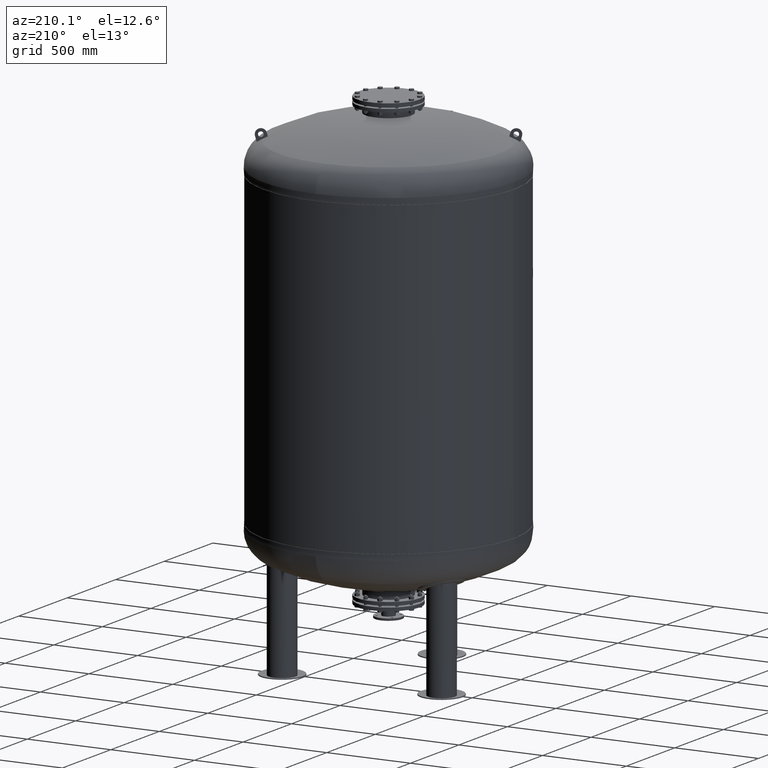
[diagram: clean part render]
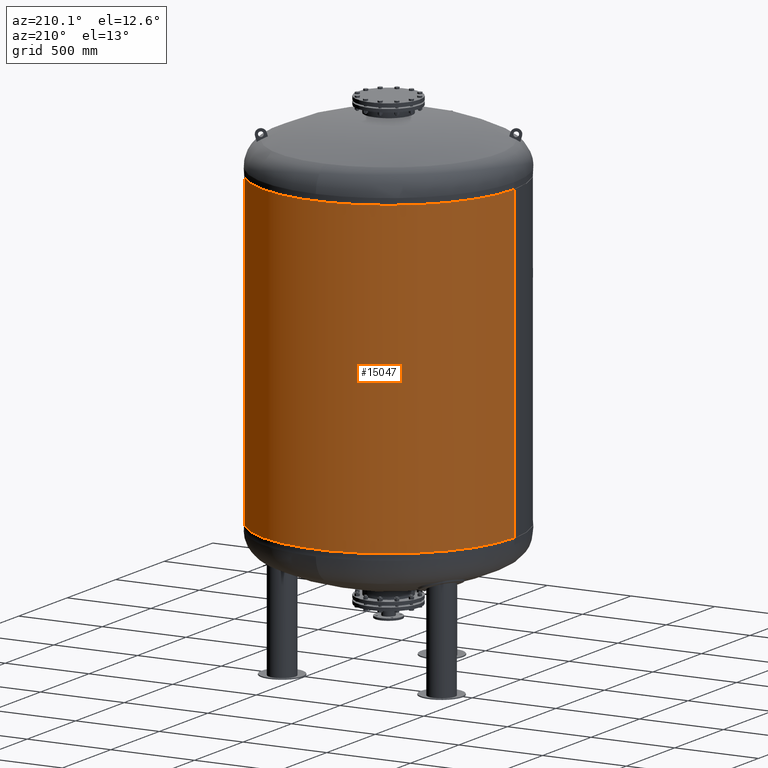
[diagram: same view with one face highlighted and labeled with its STEP entity id]
A machine part, auxiliary view. The second image highlights one B-rep face of the part: STEP entity #15047.
In plain terms, the highlighted cylindrical surface (partial cylindrical patch) has radius 750 mm, axis along (0, 0, 1).
Its self-contained STEP definition (entity closure, byte-faithful):
#14927=CARTESIAN_POINT('',(750.000000000000910,0.0,2667.0));
#14928=VERTEX_POINT('',#14927);
#14929=CARTESIAN_POINT('',(749.999999999999890,0.0,822.0));
#14930=VERTEX_POINT('',#14929);
#14931=CARTESIAN_POINT('',(750.000000000000910,0.0,2667.0));
#14932=DIRECTION('',(0.0,0.0,-1.0));
#14933=VECTOR('',#14932,1845.0);
#14934=LINE('',#14931,#14933);
#14935=EDGE_CURVE('',#14928,#14930,#14934,.T.);
#14937=CARTESIAN_POINT('',(-750.000000000000570,-9.184548E-014,2667.0));
#14938=VERTEX_POINT('',#14937);
#14946=CARTESIAN_POINT('',(-749.999999999999890,-9.184548E-014,822.000000000000110));
#14947=VERTEX_POINT('',#14946);
#14948=CARTESIAN_POINT('',(-750.000000000000570,-9.184548E-014,2667.0));
#14949=DIRECTION('',(0.0,0.0,-1.0));
#14950=VECTOR('',#14949,1845.0);
#14951=LINE('',#14948,#14950);
#14952=EDGE_CURVE('',#14938,#14947,#14951,.T.);
#15020=CARTESIAN_POINT('',(-1.663310E-014,0.0,822.000000000000110));
#15021=DIRECTION('',(0.0,0.0,1.0));
#15022=DIRECTION('',(1.0,0.0,0.0));
#15023=AXIS2_PLACEMENT_3D('',#15020,#15021,#15022);
#15024=CIRCLE('',#15023,749.999999999999890);
#15025=EDGE_CURVE('',#14930,#14947,#15024,.T.);
#15030=CARTESIAN_POINT('',(8.316550E-015,0.0,2212.250000000000000));
#15031=DIRECTION('',(1.828818E-017,0.0,1.0));
#15032=DIRECTION('',(1.0,0.0,0.0));
#15033=AXIS2_PLACEMENT_3D('',#15030,#15031,#15032);
#15034=CYLINDRICAL_SURFACE('',#15033,750.000000000000570);
#15035=ORIENTED_EDGE('',*,*,#14935,.T.);
#15036=ORIENTED_EDGE('',*,*,#15025,.T.);
#15037=ORIENTED_EDGE('',*,*,#14952,.F.);
#15038=CARTESIAN_POINT('',(1.663310E-014,0.0,2667.0));
#15039=DIRECTION('',(0.0,0.0,1.0));
#15040=DIRECTION('',(1.0,0.0,0.0));
#15041=AXIS2_PLACEMENT_3D('',#15038,#15039,#15040);
#15042=CIRCLE('',#15041,750.000000000000910);
#15043=EDGE_CURVE('',#14928,#14938,#15042,.T.);
#15044=ORIENTED_EDGE('',*,*,#15043,.F.);
#15045=EDGE_LOOP('',(#15035,#15036,#15037,#15044));
#15046=FACE_OUTER_BOUND('',#15045,.T.);
#15047=ADVANCED_FACE('',(#15046),#15034,.T.);